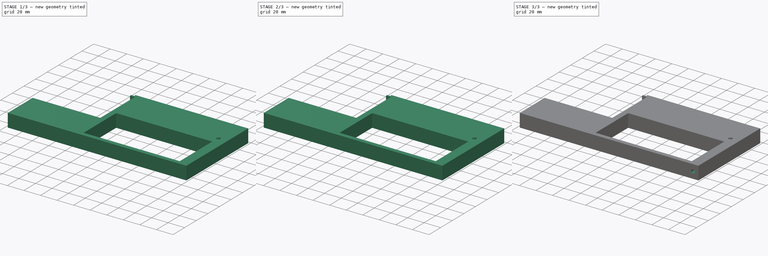
[diagram: build sequence overview — one tinted view per stage of 3, left to right]
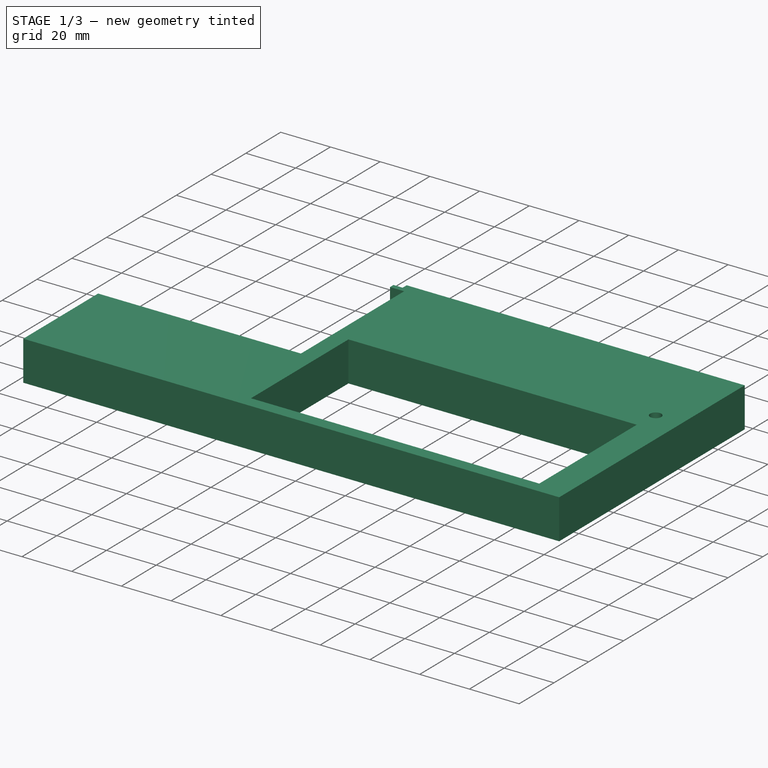
[diagram: stage 1 of 3 — iso view after this stage's code; geometry added in this stage tinted green]
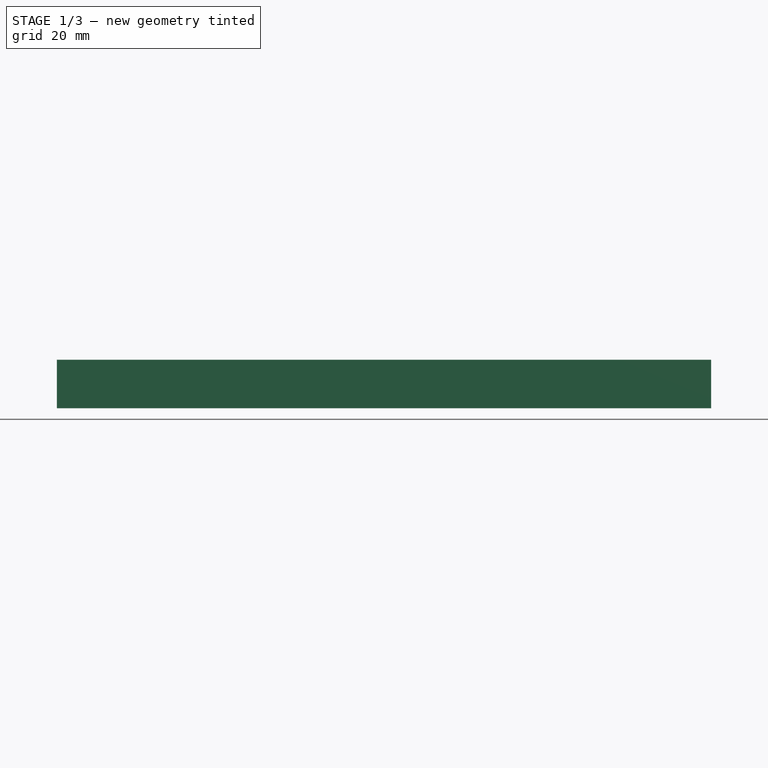
[diagram: stage 1 of 3 — front view after this stage's code; geometry added in this stage tinted green]
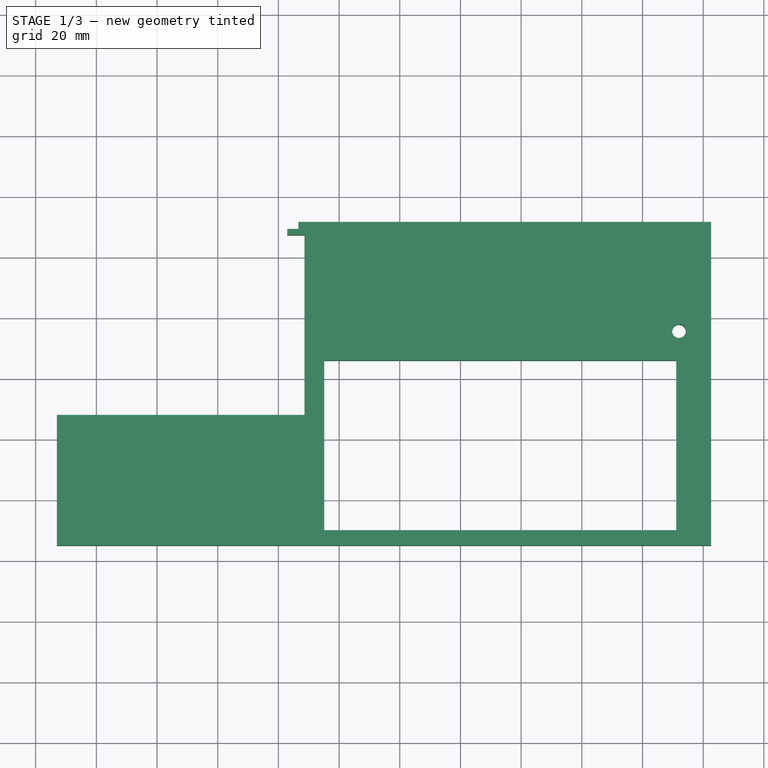
[diagram: stage 1 of 3 — top view after this stage's code; geometry added in this stage tinted green]
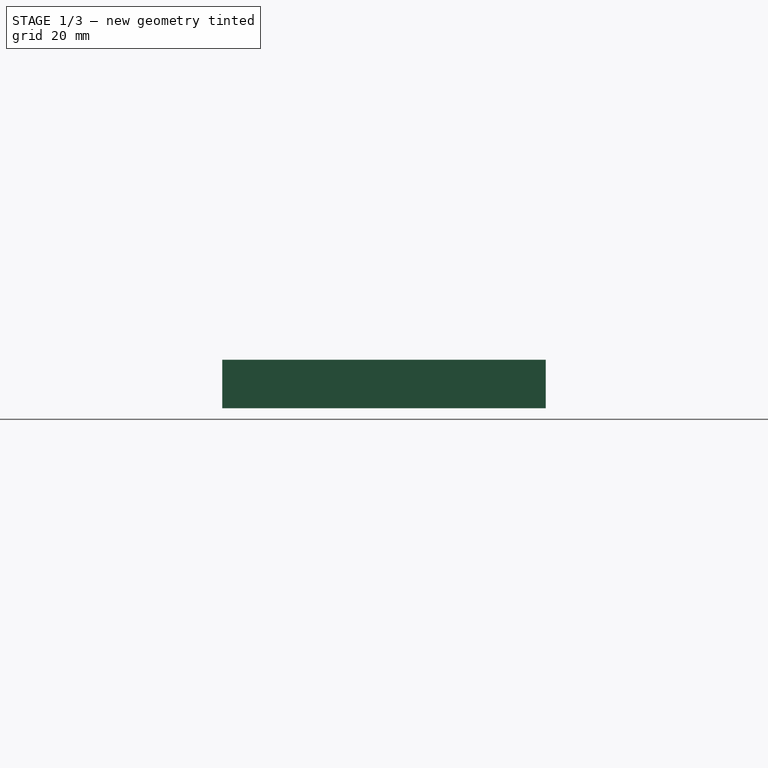
[diagram: stage 1 of 3 — right view after this stage's code; geometry added in this stage tinted green]
FCSTD DOCUMENT  (FreeCAD 0.20R29410 (Git))
Label: front-side-r
License: All rights reserved
LicenseURL: http://en.wikipedia.org/wiki/All_rights_reserved
objects: Sketcher::SketchObject×5, PartDesign::Pocket×4, PartDesign::Pad×1, PartDesign::CoordinateSystem×1, PartDesign::Plane×1, PartDesign::Body×1, App::Part×1
note: 18 computed .brp shape members not serialized (recipe doc carries the construction recipe); baked Part::Feature solids carry a one-line shape summary decoded from their .brp
EXTERNAL_REF file=planB.FCStd obj=Spreadsheet

FEATURE [Sketcher::SketchObject] Sketch
  FullyConstrained = true
  MapMode = 5
  Support = -> [XY_Plane]
  expr: Constraints[30] = planB#<<data>>.clearance_m4
  sketch-geometry (11):
    g0: LineSegment StartX=87 StartY=5 StartZ=0 EndX=302.6 EndY=5 EndZ=0
    g1: LineSegment StartX=302.6 StartY=5 StartZ=0 EndX=302.6 EndY=111.6 EndZ=0
    g2: LineSegment StartX=302.6 StartY=111.6 StartZ=0 EndX=166.6 EndY=111.6 EndZ=0
    g3: LineSegment StartX=168.6 StartY=48 StartZ=0 EndX=87 EndY=48 EndZ=0
    g4: LineSegment StartX=87 StartY=48 StartZ=0 EndX=87 EndY=5 EndZ=0
    g5: LineSegment StartX=168.6 StartY=107.3 StartZ=0 EndX=168.6 EndY=48 EndZ=0
    g6: LineSegment StartX=162.9 StartY=107.3 StartZ=0 EndX=168.6 EndY=107.3 EndZ=0
    g7: LineSegment StartX=162.9 StartY=109.3 StartZ=0 EndX=162.9 EndY=107.3 EndZ=0
    g8: LineSegment StartX=166.6 StartY=111.6 StartZ=0 EndX=166.6 EndY=109.3 EndZ=0
    g9: LineSegment StartX=166.6 StartY=109.3 StartZ=0 EndX=162.9 EndY=109.3 EndZ=0
    g10: Circle CenterX=292 CenterY=75.6 CenterZ=0 NormalX=0 NormalY=0 NormalZ=1 AngleXU=0 Radius=2.25
  constraints (33):
    c: Horizontal(g0)
    c: Coincident(g0,g1)
    c: Vertical(g1)
    c: Coincident(g1,g2)
    c: Horizontal(g2)
    c: Coincident(g2,g8)
    c: Coincident(g5,g3)
    c: Horizontal(g3)
    c: Coincident(g3,g4)
    c: Coincident(g4,g0)
    c: Vertical(g4)
    c: DistanceY(g-1,g0) = 5
    c: DistanceX(g0) = 87
    c: Distance(g4) = 43
    c: DistanceX(g1) = 302.6
    c: DistanceY(g1) = 111.6
    c: Coincident(g6,g5)
    c: Vertical(g5)
    c: Coincident(g7,g6)
    c: Coincident(g9,g7)
    c: Vertical(g7)
    c: Coincident(g8,g9)
    c: Vertical(g8)
    c: DistanceX(g3) = 168.6
    c: Distance(g8) = 2.3
    c: Horizontal(g9)
    c: Horizontal(g6)
    c: Distance(g7) = 2
    c: Distance(g5,g8) = 2
    c: DistanceX(g6,g6) = 5.7
    c: Diameter(g10) = 4.5
    c: DistanceX(g10) = 292
    c: DistanceY(g10) = 75.6
FEATURE [PartDesign::Pad] Pad
  Direction = (0,0,1)
  Length = 16
  Length2 = 10
  Profile = -> Sketch
  ReferenceAxis = -> Sketch [N_Axis]
  Type = 0
FEATURE [PartDesign::CoordinateSystem] LCS_0
  AttacherType = Attacher::AttachEngine3D
  MapMode = 2
  Support = -> [X_Axis001]
FEATURE [Sketcher::SketchObject] Sketch002
  FullyConstrained = true
  MapMode = 5
  Support = -> [XY_Plane]
  sketch-geometry (4):
    g0: LineSegment StartX=291.1 StartY=10 StartZ=0 EndX=175.1 EndY=10 EndZ=0
    g1: LineSegment StartX=175.1 StartY=10 StartZ=0 EndX=175.1 EndY=66 EndZ=0
    g2: LineSegment StartX=175.1 StartY=66 StartZ=0 EndX=291.1 EndY=66 EndZ=0
    g3: LineSegment StartX=291.1 StartY=66 StartZ=0 EndX=291.1 EndY=10 EndZ=0
  constraints (12):
    c: Coincident(g0,g1)
    c: Coincident(g1,g2)
    c: Coincident(g2,g3)
    c: Coincident(g3,g0)
    c: Horizontal(g0)
    c: Horizontal(g2)
    c: Vertical(g1)
    c: Vertical(g3)
    c: Distance(g1) = 56
    c: DistanceY(g0) = 10
    c: Distance(g0) = 116
    c: DistanceX(g0) = 291.1
FEATURE [PartDesign::Pocket] Pocket001
  BaseFeature = -> Pad
  Direction = (0,0,-1)
  Length = 17
  Length2 = 5
  Midplane = true
  Profile = -> Sketch002
  ReferenceAxis = -> Sketch002 [N_Axis]
  Type = 1
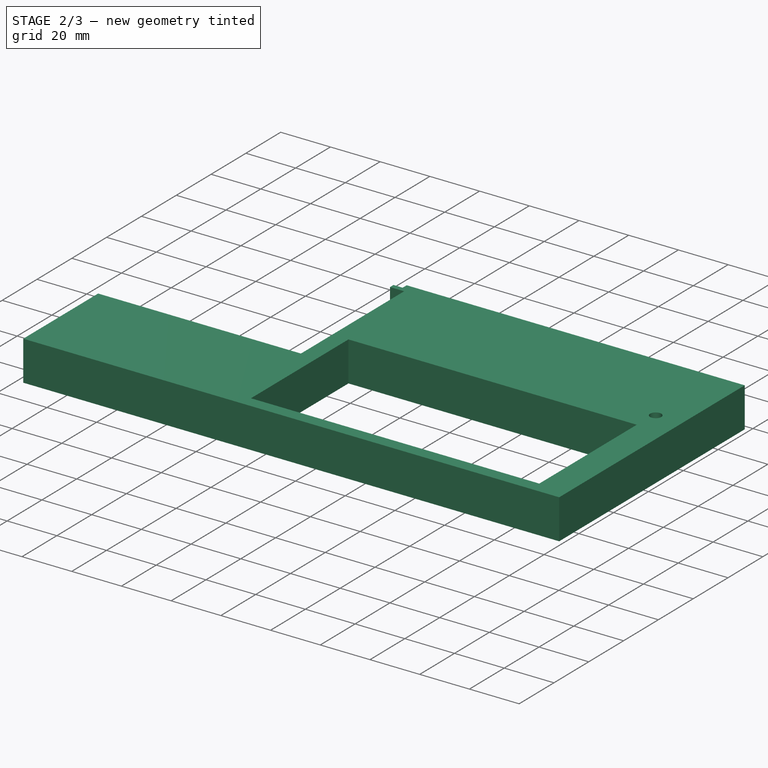
[diagram: stage 2 of 3 — iso view after this stage's code; geometry added in this stage tinted green]
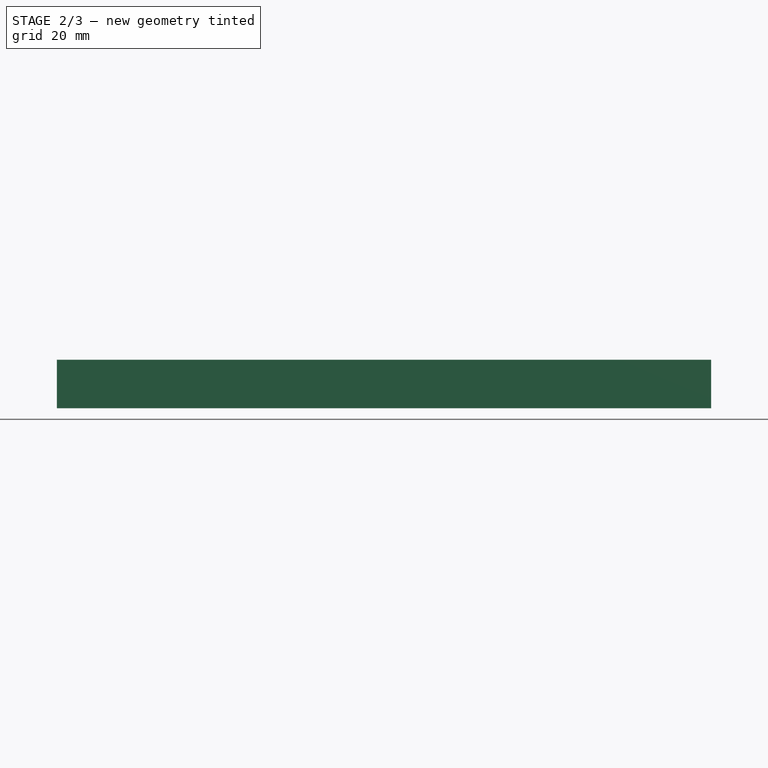
[diagram: stage 2 of 3 — front view after this stage's code; geometry added in this stage tinted green]
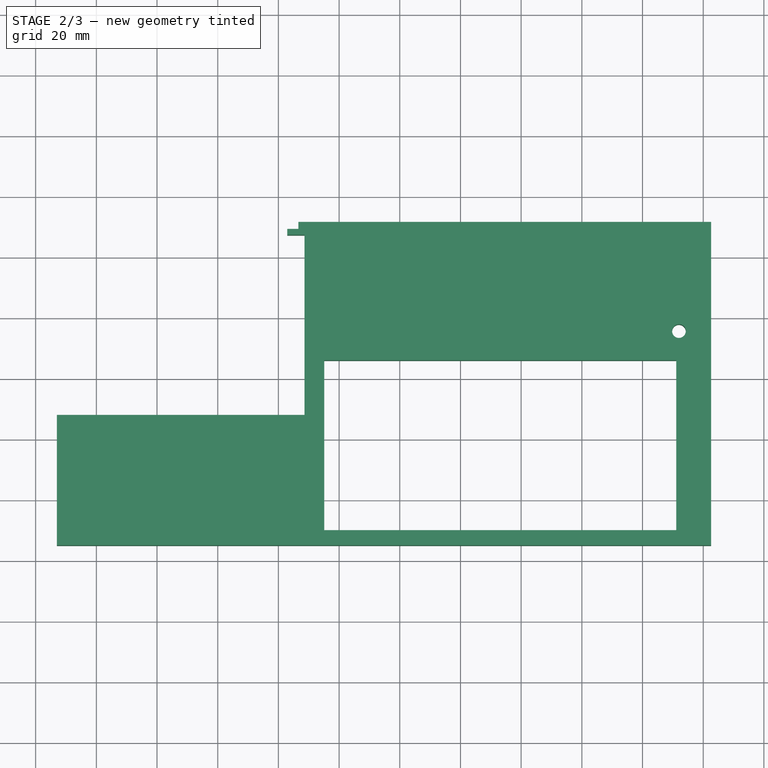
[diagram: stage 2 of 3 — top view after this stage's code; geometry added in this stage tinted green]
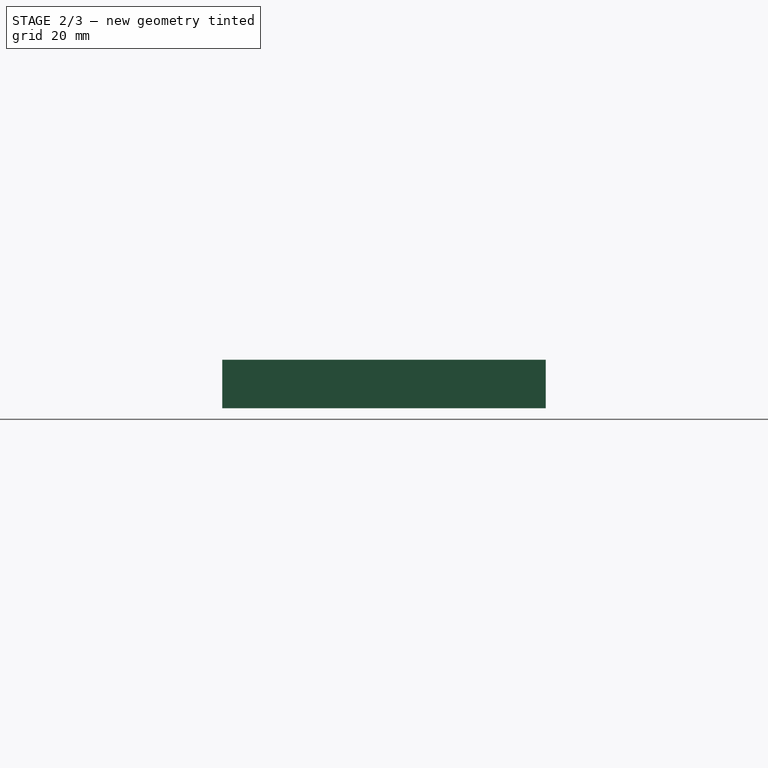
[diagram: stage 2 of 3 — right view after this stage's code; geometry added in this stage tinted green]
FEATURE [PartDesign::Plane] DatumPlane
  AttachmentOffset = pos=(0,0,24) rot=(0,0,1;0rad)
  Length = 60
  MapMode = 5
  Placement = pos=(0,0,24) rot=(0,0,1;0rad)
  ResizeMode = 0
  Support = -> [XY_Plane]
  Width = 60
FEATURE [Sketcher::SketchObject] Sketch003
  FullyConstrained = true
  MapMode = 5
  Placement = pos=(0,0,24) rot=(0,0,1;0rad)
  Support = -> [DatumPlane]
  sketch-geometry (4):
    g0: LineSegment StartX=168.6 StartY=67 StartZ=0 EndX=297.6 EndY=67 EndZ=0
    g1: LineSegment StartX=297.6 StartY=67 StartZ=0 EndX=297.6 EndY=5 EndZ=0
    g2: LineSegment StartX=297.6 StartY=5 StartZ=0 EndX=168.6 EndY=5 EndZ=0
    g3: LineSegment StartX=168.6 StartY=5 StartZ=0 EndX=168.6 EndY=67 EndZ=0
  constraints (12):
    c: Coincident(g0,g1)
    c: Coincident(g1,g2)
    c: Coincident(g2,g3)
    c: Coincident(g3,g0)
    c: Horizontal(g0)
    c: Horizontal(g2)
    c: Vertical(g1)
    c: Vertical(g3)
    c: Distance(g1) = 62
    c: Distance(g2) = 129
    c: DistanceX(g0) = 168.6
    c: DistanceY(g2) = 5
FEATURE [PartDesign::Pocket] Pocket002
  BaseFeature = -> Pocket001
  Direction = (0,0,-1)
  Length = 6
  Length2 = 5
  Profile = -> Sketch003
  ReferenceAxis = -> Sketch003 [N_Axis]
  Type = 0
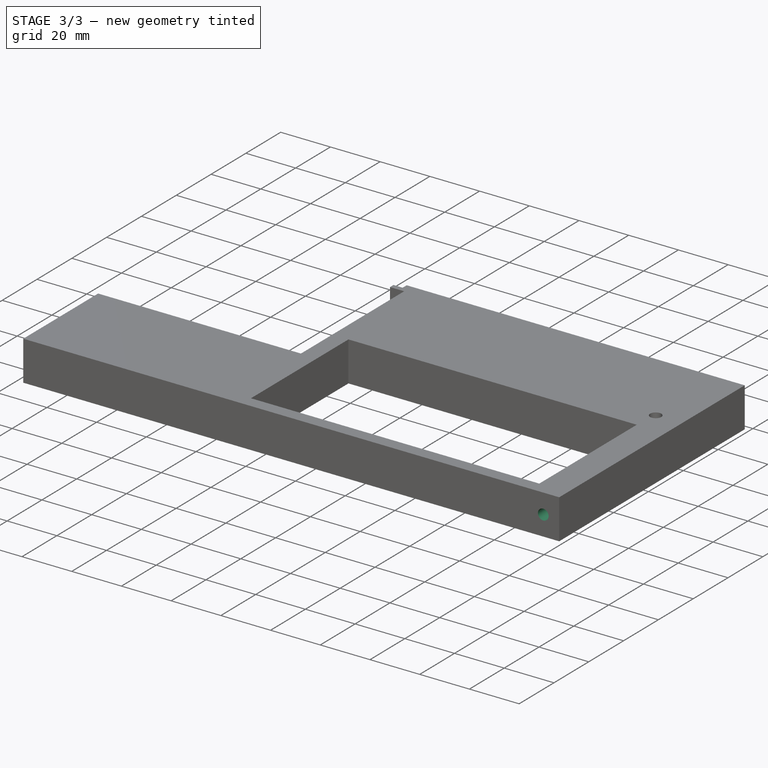
[diagram: stage 3 of 3 — iso view after this stage's code; geometry added in this stage tinted green]
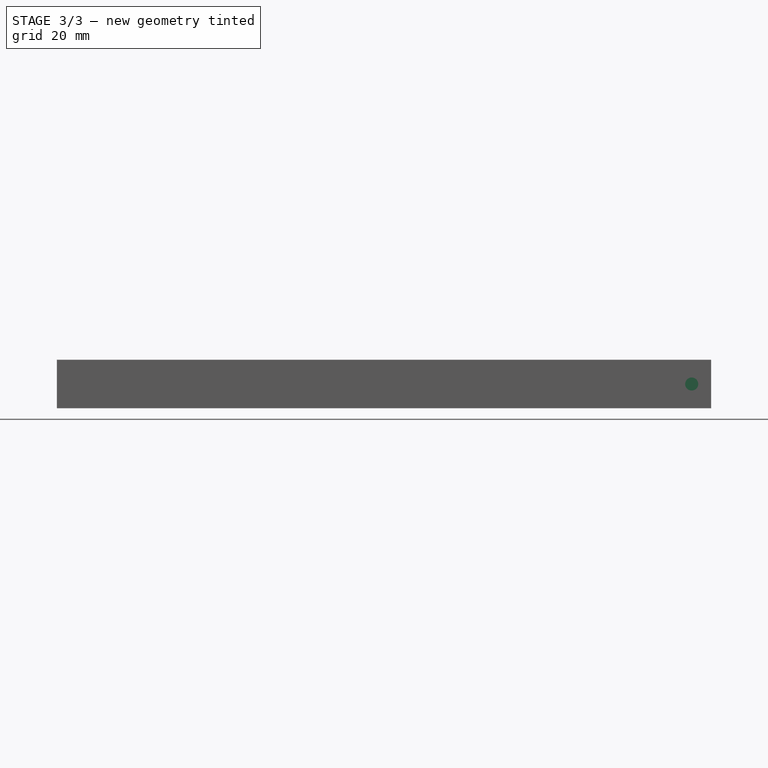
[diagram: stage 3 of 3 — front view after this stage's code; geometry added in this stage tinted green]
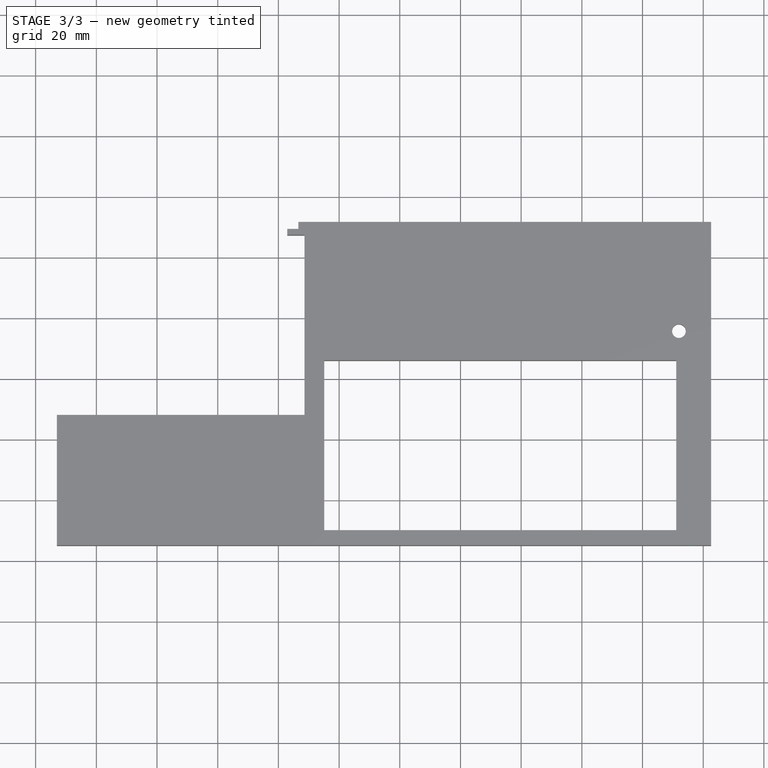
[diagram: stage 3 of 3 — top view after this stage's code; geometry added in this stage tinted green]
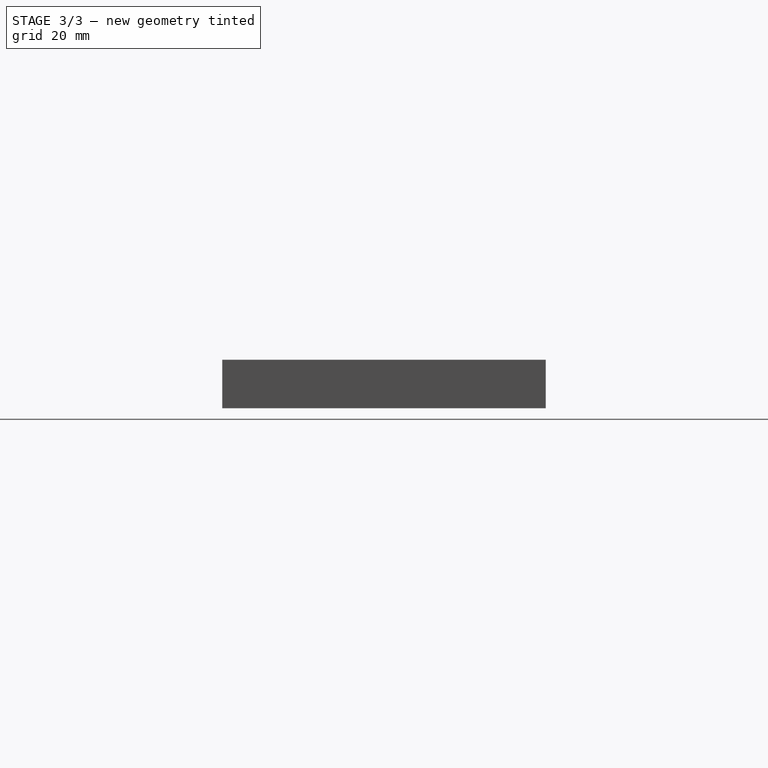
[diagram: stage 3 of 3 — right view after this stage's code; geometry added in this stage tinted green]
FEATURE [Sketcher::SketchObject] Sketch004
  FullyConstrained = true
  MapMode = 5
  Support = -> [XY_Plane]
  sketch-geometry (1):
    g0: Circle CenterX=292 CenterY=75.6 CenterZ=0 NormalX=0 NormalY=0 NormalZ=1 AngleXU=0 Radius=7.5
  constraints (3):
    c: Diameter(g0) = 15
    c: DistanceX(g0) = 292
    c: DistanceY(g0) = 75.6
FEATURE [PartDesign::Pocket] Pocket
  BaseFeature = -> Pocket002
  Direction = (0,0,-1)
  Length = 8
  Length2 = 5
  Profile = -> Sketch004
  ReferenceAxis = -> Sketch004 [N_Axis]
  Reversed = true
  Type = 0
FEATURE [Sketcher::SketchObject] Sketch005
  FullyConstrained = true
  MapMode = 5
  Placement = pos=(0,0,0) rot=(1,0,0;1.5708rad)
  Support = -> [XZ_Plane]
  expr: Constraints[1] = <<planB>>#<<data>>.insert_diameter
  sketch-geometry (1):
    g0: Circle CenterX=296.2 CenterY=8 CenterZ=0 NormalX=0 NormalY=0 NormalZ=1 AngleXU=0 Radius=2.15
  constraints (3):
    c: DistanceY(g0) = 8
    c: Diameter(g0) = 4.3
    c: DistanceX(g0) = 296.2
FEATURE [PartDesign::Pocket] Pocket003
  BaseFeature = -> Pocket
  Direction = (0,1,2e-16)
  Length = 25
  Length2 = 5
  Profile = -> Sketch005
  ReferenceAxis = -> Sketch005 [N_Axis]
  Type = 0
FEATURE [PartDesign::Body] Body
  Group = -> [Sketch,Pad,Sketch002,Pocket001,DatumPlane,Sketch003,Pocket002,Sketch004,Pocket,Sketch005,Pocket003]
  Origin = -> Origin
  Tip = -> Pocket003
FEATURE [App::Part] front_side_r
  Group = -> [LCS_0,Body]
  Origin = -> Origin001
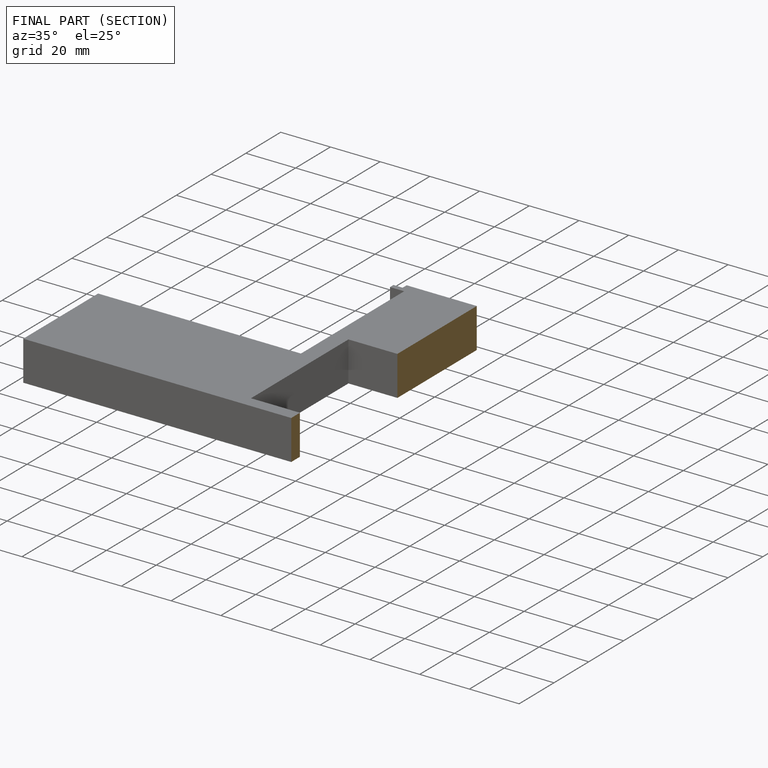
[diagram: finished part — half-section view (interior)]
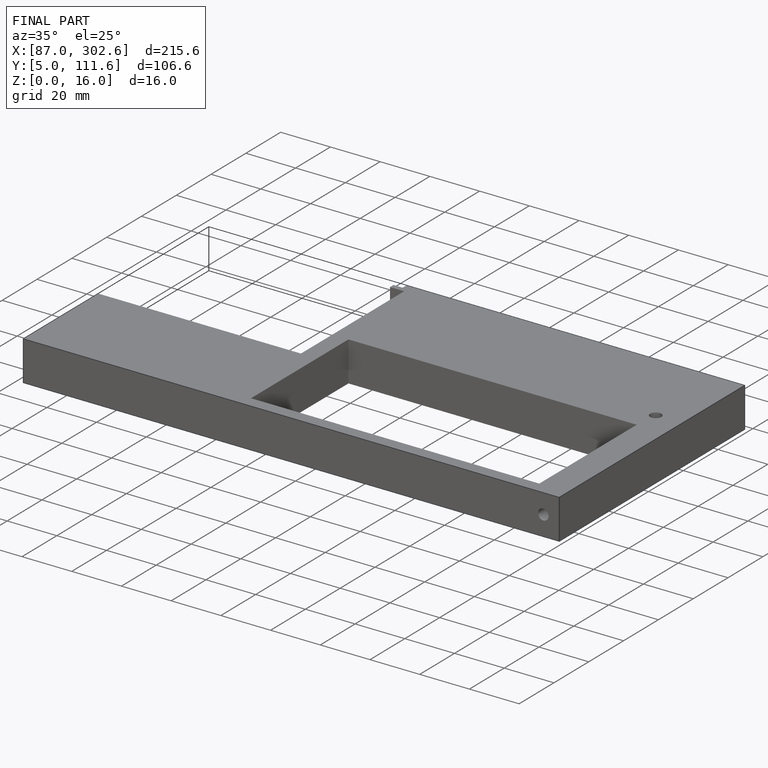
[diagram: finished part — iso view with bounding-box wireframe]
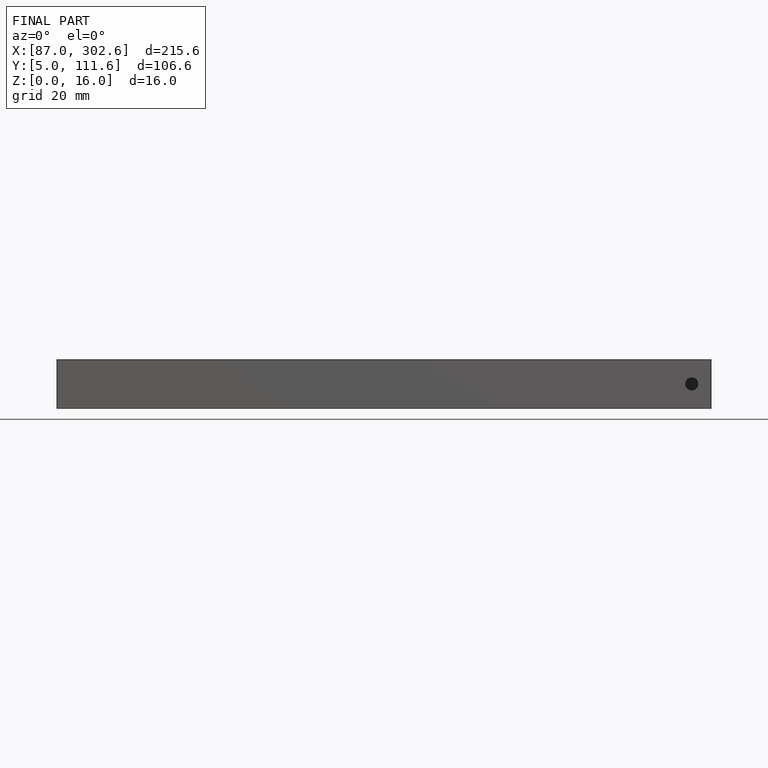
[diagram: finished part — front view with bounding-box wireframe]
